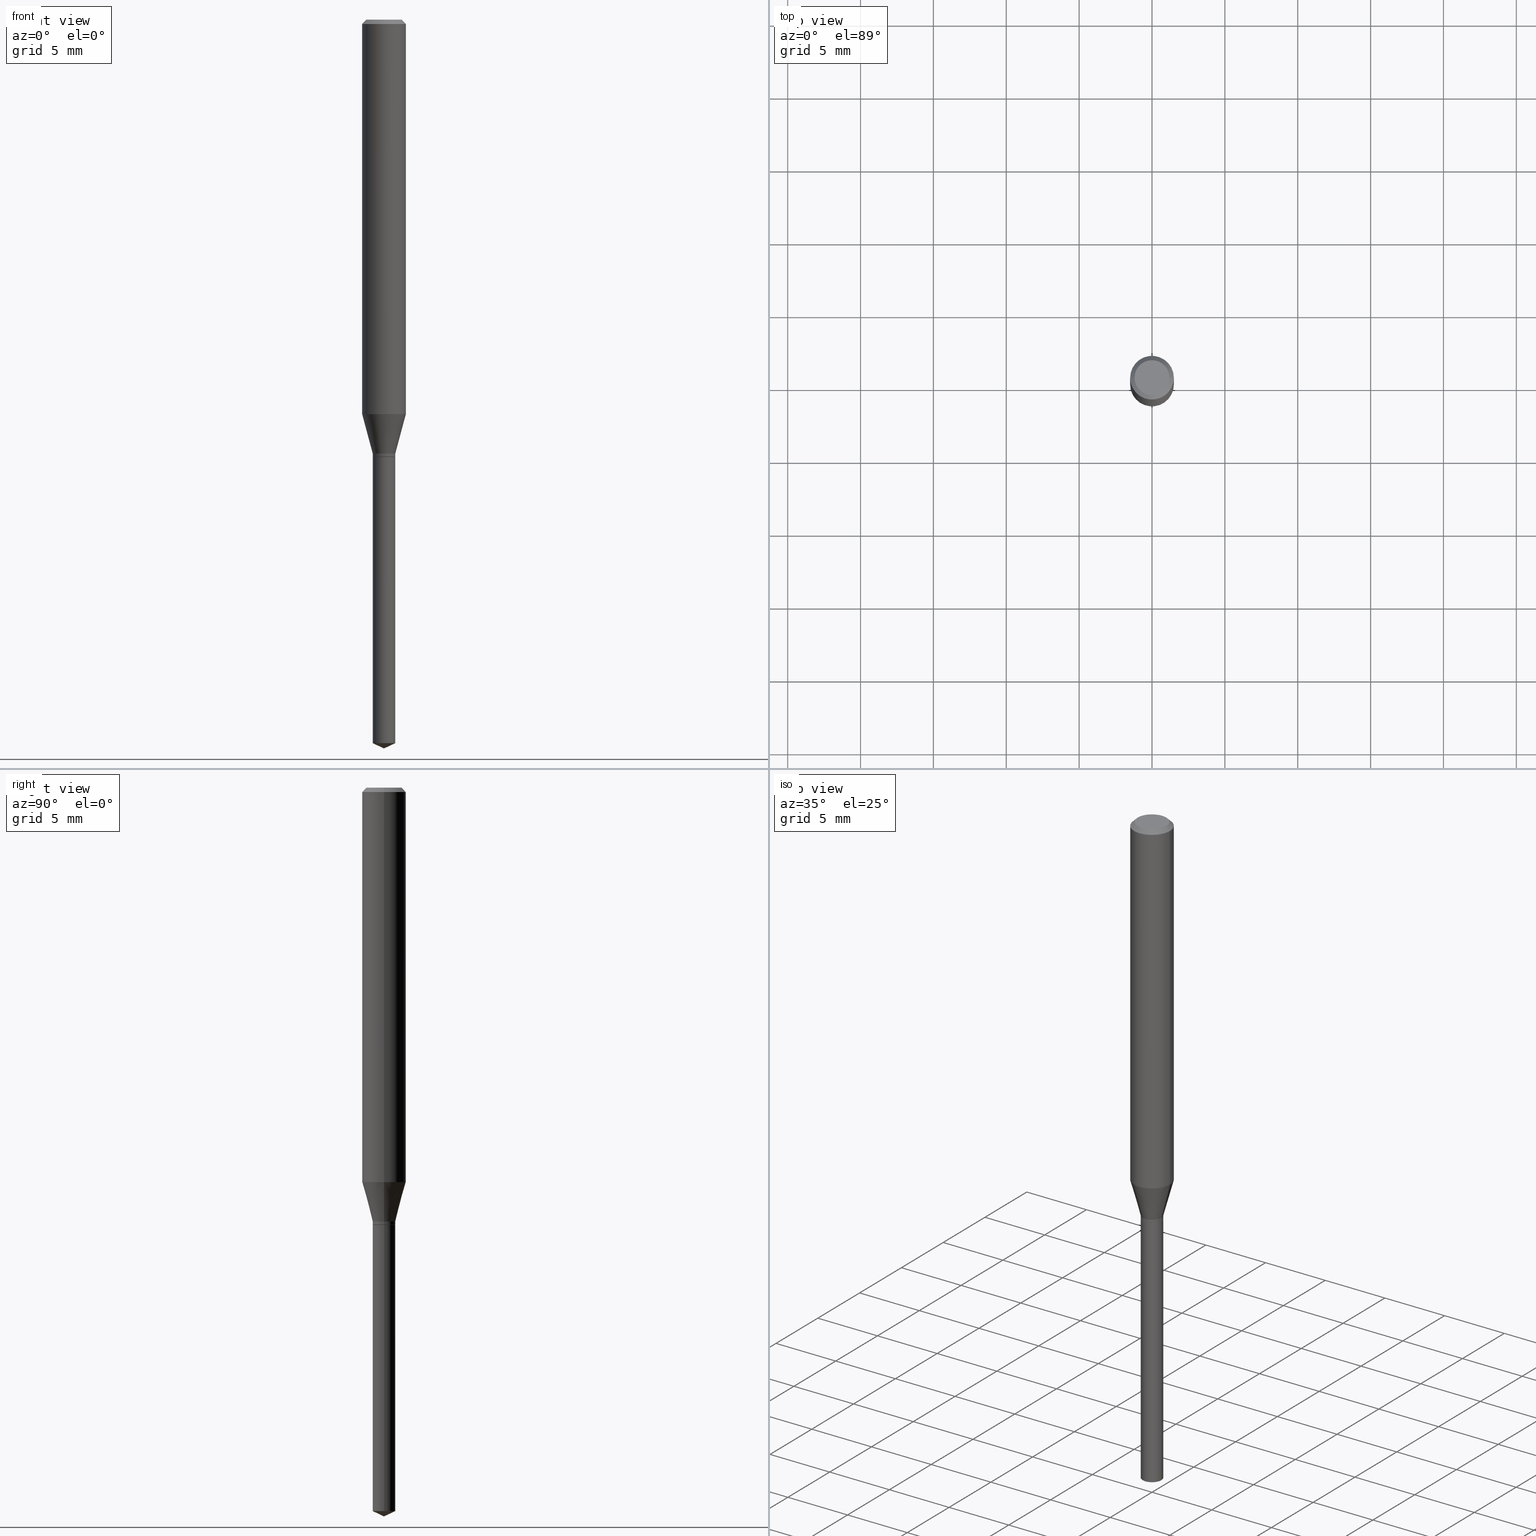
[diagram: canonical four-view strip — front | top / right | iso, engineering-drawing reading convention]
A machine part, canonical four-view strip (front | top / right | iso — engineering-drawing reading convention). The complete STEP part file that produces these views, byte-faithful:
ISO-10303-21;
HEADER;
FILE_DESCRIPTION (( 'STEP AP203' ),
    '1' );
FILE_NAME ('08169.STEP',
    '2024-04-24T13:42:27',
    ( '' ),
    ( '' ),
    'SwSTEP 2.0',
    'SolidWorks 2023',
    '' );
FILE_SCHEMA (( 'CONFIG_CONTROL_DESIGN' ));
ENDSEC;

DATA;
#1 = VERTEX_POINT ( 'NONE', #83 ) ;
#2 = DIRECTION ( 'NONE',  ( -2.445468806185136597E-29, 3.491481338843145583E-15, 1.000000000000000000 ) ) ;
#3 = APPLICATION_CONTEXT ( 'configuration controlled 3d designs of mechanical parts and assemblies' ) ;
#4 = CARTESIAN_POINT ( 'NONE',  ( 0.03049999999999999586, -4.338514711646492641E-15, -1.181600000000000206 ) ) ;
#5 = APPROVAL ( #205, 'UNSPECIFIED' ) ;
#6 = EDGE_CURVE ( 'NONE', #333, #372, #239, .T. ) ;
#7 = AXIS2_PLACEMENT_3D ( 'NONE', #126, #177, #366 ) ;
#8 = CARTESIAN_POINT ( 'NONE',  ( 0.000000000000000000, 0.000000000000000000, 0.000000000000000000 ) ) ;
#9 = AXIS2_PLACEMENT_3D ( 'NONE', #331, #295, #441 ) ;
#10 = APPLICATION_PROTOCOL_DEFINITION ( 'international standard', 'config_control_design', 1994, #119 ) ;
#11 = MECHANICAL_CONTEXT ( 'NONE', #3, 'mechanical' ) ;
#12 = DIRECTION ( 'NONE',  ( -2.445468806185136597E-29, 3.491481338843145583E-15, 1.000000000000000000 ) ) ;
#13 = ORIENTED_EDGE ( 'NONE', *, *, #160, .F. ) ;
#14 = EDGE_CURVE ( 'NONE', #1, #86, #140, .T. ) ;
#15 = DIRECTION ( 'NONE',  ( -2.445468806185136597E-29, 3.491481338843145583E-15, 1.000000000000000000 ) ) ;
#16 = ORIENTED_EDGE ( 'NONE', *, *, #211, .F. ) ;
#17 = LINE ( 'NONE', #468, #97 ) ;
#18 = MANIFOLD_SOLID_BREP ( 'Body-Move/Copy2[1]', #359 ) ;
#19 = ORIENTED_EDGE ( 'NONE', *, *, #79, .F. ) ;
#20 = DIRECTION ( 'NONE',  ( 1.000000000000000000, -6.982962677686266711E-15, 0.000000000000000000 ) ) ;
#21 = EDGE_CURVE ( 'NONE', #289, #210, #424, .T. ) ;
#22 = ORIENTED_EDGE ( 'NONE', *, *, #247, .F. ) ;
#23 = FACE_OUTER_BOUND ( 'NONE', #216, .T. ) ;
#24 = DIRECTION ( 'NONE',  ( 1.000000000000000000, -6.982962677686269866E-15, 0.000000000000000000 ) ) ;
#25 = ORIENTED_EDGE ( 'NONE', *, *, #384, .F. ) ;
#26 = DIRECTION ( 'NONE',  ( -2.445468806185136597E-29, 3.491481338843145583E-15, 1.000000000000000000 ) ) ;
#27 = DIRECTION ( 'NONE',  ( -2.445468806185136877E-29, 3.491481338843145188E-15, 1.000000000000000000 ) ) ;
#28 = ORIENTED_EDGE ( 'NONE', *, *, #14, .T. ) ;
#29 = LINE ( 'NONE', #233, #297 ) ;
#30 = LINE ( 'NONE', #303, #430 ) ;
#31 = ADVANCED_FACE ( 'NONE', ( #174 ), #215, .F. ) ;
#32 = ORIENTED_EDGE ( 'NONE', *, *, #470, .F. ) ;
#33 = CARTESIAN_POINT ( 'NONE',  ( 8.265746106709734507E-48, -1.180129479067563789E-33, -3.380025165646692144E-19 ) ) ;
#34 = DIRECTION ( 'NONE',  ( -2.445468806185136597E-29, 3.491481338843145583E-15, 1.000000000000000000 ) ) ;
#35 = PERSON_AND_ORGANIZATION ( #204, #466 ) ;
#36 = ORIENTED_EDGE ( 'NONE', *, *, #401, .T. ) ;
#37 = CARTESIAN_POINT ( 'NONE',  ( -0.05904999999999999832, -1.461739316084686790E-15, -0.01181000000000007044 ) ) ;
#38 = CARTESIAN_POINT ( 'NONE',  ( -0.05905000000000013710, -3.301819723023976134E-15, -1.065849949443908429 ) ) ;
#39 = CIRCLE ( 'NONE', #163, 0.05905000000000013710 ) ;
#40 = DATE_AND_TIME ( #312, #276 ) ;
#41 = DESIGN_CONTEXT ( 'detailed design', #119, 'design' ) ;
#42 = PERSON_AND_ORGANIZATION_ROLE ( 'design_owner' ) ;
#43 = ADVANCED_FACE ( 'NONE', ( #433 ), #431, .T. ) ;
#44 = CIRCLE ( 'NONE', #283, 0.03049999999999999586 ) ;
#45 = APPROVAL_PERSON_ORGANIZATION ( #288, #151, #434 ) ;
#46 = CARTESIAN_POINT ( 'NONE',  ( 4.132873053354867254E-48, -5.900647395337818946E-34, -1.690012582823346072E-19 ) ) ;
#47 = EDGE_CURVE ( 'NONE', #231, #252, #164, .T. ) ;
#48 = FACE_OUTER_BOUND ( 'NONE', #330, .T. ) ;
#49 = ORIENTED_EDGE ( 'NONE', *, *, #171, .F. ) ;
#50 = CARTESIAN_POINT ( 'NONE',  ( -8.056251198502642148E-30, -9.417258266884755769E-15, -1.181599999999999984 ) ) ;
#51 = CARTESIAN_POINT ( 'NONE',  ( 2.889565941388357678E-29, -4.125534349977061317E-15, -1.181600000000000206 ) ) ;
#52 = EDGE_CURVE ( 'NONE', #333, #231, #17, .T. ) ;
#53 = LINE ( 'NONE', #212, #403 ) ;
#54 = CIRCLE ( 'NONE', #117, 0.03050000000000000974 ) ;
#55 = CALENDAR_DATE ( 2024, 24, 4 ) ;
#56 = VERTEX_POINT ( 'NONE', #256 ) ;
#57 = DIRECTION ( 'NONE',  ( 1.000000000000000000, -6.982962677686266711E-15, 4.876176775795936353E-29 ) ) ;
#58 = CIRCLE ( 'NONE', #392, 0.03049999999999999586 ) ;
#59 = AXIS2_PLACEMENT_3D ( 'NONE', #172, #128, #322 ) ;
#60 = ORIENTED_EDGE ( 'NONE', *, *, #190, .F. ) ;
#61 = CARTESIAN_POINT ( 'NONE',  ( 2.888098660104663766E-31, -4.123439461173779647E-17, -0.01181000000000007044 ) ) ;
#62 = DIRECTION ( 'NONE',  ( -2.445468806185136597E-29, 3.491481338843145583E-15, 1.000000000000000000 ) ) ;
#63 = ORIENTED_EDGE ( 'NONE', *, *, #316, .T. ) ;
#64 = DIRECTION ( 'NONE',  ( 1.000000000000000000, -6.982962677686266711E-15, 0.000000000000000000 ) ) ;
#65 = DIRECTION ( 'NONE',  ( 2.445468806185136597E-29, -3.491481338843145583E-15, -1.000000000000000000 ) ) ;
#66 = ORIENTED_EDGE ( 'NONE', *, *, #237, .F. ) ;
#67 = CC_DESIGN_PERSON_AND_ORGANIZATION_ASSIGNMENT ( #423, #42, ( #142 ) ) ;
#68 = CARTESIAN_POINT ( 'NONE',  ( 4.815128079378533515E-29, -6.874726756182153211E-15, -1.968999999999999861 ) ) ;
#69 = CARTESIAN_POINT ( 'NONE',  ( 0.000000000000000000, 0.000000000000000000, 0.000000000000000000 ) ) ;
#70 = EDGE_LOOP ( 'NONE', ( #275, #108, #49, #16 ) ) ;
#71 = LINE ( 'NONE', #386, #203 ) ;
#72 = DIRECTION ( 'NONE',  ( -2.445468806185136597E-29, 3.491481338843145583E-15, 1.000000000000000000 ) ) ;
#73 = EDGE_LOOP ( 'NONE', ( #444, #173 ) ) ;
#74 = DIRECTION ( 'NONE',  ( 1.000000000000000000, -6.982962677686266711E-15, 0.000000000000000000 ) ) ;
#75 = APPROVAL_STATUS ( 'not_yet_approved' ) ;
#76 = AXIS2_PLACEMENT_3D ( 'NONE', #138, #413, #230 ) ;
#77 = AXIS2_PLACEMENT_3D ( 'NONE', #326, #250, #248 ) ;
#78 = PERSON_AND_ORGANIZATION ( #204, #466 ) ;
#79 = EDGE_CURVE ( 'NONE', #86, #197, #360, .T. ) ;
#80 = CIRCLE ( 'NONE', #123, 0.04724000000000000421 ) ;
#81 = ADVANCED_FACE ( 'NONE', ( #82 ), #438, .T. ) ;
#82 = FACE_OUTER_BOUND ( 'NONE', #167, .T. ) ;
#83 = CARTESIAN_POINT ( 'NONE',  ( 0.02999999999999999542, -4.335023230307649634E-15, -1.181600000000000206 ) ) ;
#84 = CONICAL_SURFACE ( 'NONE', #482, 0.05904999999999999832, 0.7853981633974452814 ) ;
#85 = DIRECTION ( 'NONE',  ( -2.445468806185136597E-29, 3.491481338843145583E-15, 1.000000000000000000 ) ) ;
#86 = VERTEX_POINT ( 'NONE', #363 ) ;
#87 = PLANE ( 'NONE',  #425 ) ;
#88 = ORIENTED_EDGE ( 'NONE', *, *, #157, .T. ) ;
#89 = APPROVAL_PERSON_ORGANIZATION ( #78, #5, #459 ) ;
#90 = FACE_OUTER_BOUND ( 'NONE', #144, .T. ) ;
#91 = APPROVAL_STATUS ( 'not_yet_approved' ) ;
#92 = ADVANCED_FACE ( 'NONE', ( #90 ), #87, .F. ) ;
#93 = VERTEX_POINT ( 'NONE', #332 ) ;
#94 = CARTESIAN_POINT ( 'NONE',  ( 2.889565941388357118E-29, -4.125534349977060528E-15, -1.181599999999999984 ) ) ;
#95 = CARTESIAN_POINT ( 'NONE',  ( 0.03049999999999999586, -7.038049931010047308E-15, -1.954777616426272902 ) ) ;
#96 = AXIS2_PLACEMENT_3D ( 'NONE', #269, #264, #143 ) ;
#97 = VECTOR ( 'NONE', #124, 39.37007874015748854 ) ;
#98 = ORIENTED_EDGE ( 'NONE', *, *, #406, .F. ) ;
#99 = DIRECTION ( 'NONE',  ( -2.445468806185136597E-29, 3.491481338843145583E-15, 1.000000000000000000 ) ) ;
#100 = CARTESIAN_POINT ( 'NONE',  ( 2.888098660104663766E-31, -4.123439461173779647E-17, -0.01181000000000007044 ) ) ;
#101 = SECURITY_CLASSIFICATION_LEVEL ( 'unclassified' ) ;
#102 = ORIENTED_EDGE ( 'NONE', *, *, #362, .T. ) ;
#103 = DIRECTION ( 'NONE',  ( -2.445468806185136597E-29, 3.491481338843145583E-15, 1.000000000000000000 ) ) ;
#104 = CARTESIAN_POINT ( 'NONE',  ( 0.05905000000000013710, -4.133739154607691731E-15, -1.065849949443908429 ) ) ;
#105 = VERTEX_POINT ( 'NONE', #95 ) ;
#106 = CARTESIAN_POINT ( 'NONE',  ( -0.03049999999999999586, -3.908818815570230173E-15, -1.181599999999999984 ) ) ;
#107 = FACE_OUTER_BOUND ( 'NONE', #125, .T. ) ;
#108 = ORIENTED_EDGE ( 'NONE', *, *, #52, .T. ) ;
#109 = DIRECTION ( 'NONE',  ( 1.000000000000000000, -6.982962677686266711E-15, 4.876185090822587894E-29 ) ) ;
#110 = ORIENTED_EDGE ( 'NONE', *, *, #406, .T. ) ;
#111 = ADVANCED_FACE ( 'NONE', ( #249 ), #395, .F. ) ;
#112 = CC_DESIGN_SECURITY_CLASSIFICATION ( #389, ( #477 ) ) ;
#113 =( CONVERSION_BASED_UNIT ( 'INCH', #200 ) LENGTH_UNIT ( ) NAMED_UNIT ( #278 ) );
#114 = AXIS2_PLACEMENT_3D ( 'NONE', #235, #26, #415 ) ;
#115 = DATE_TIME_ROLE ( 'creation_date' ) ;
#116 = COORDINATED_UNIVERSAL_TIME_OFFSET ( 5, 0, .BEHIND. ) ;
#117 = AXIS2_PLACEMENT_3D ( 'NONE', #427, #206, #20 ) ;
#118 = AXIS2_PLACEMENT_3D ( 'NONE', #51, #213, #364 ) ;
#119 = APPLICATION_CONTEXT ( 'configuration controlled 3d designs of mechanical parts and assemblies' ) ;
#120 = CARTESIAN_POINT ( 'NONE',  ( 4.815128079378533515E-29, -6.874726756182153211E-15, -1.968999999999999861 ) ) ;
#121 = ADVANCED_FACE ( 'NONE', ( #48 ), #325, .T. ) ;
#122 = EDGE_LOOP ( 'NONE', ( #262, #135, #60 ) ) ;
#123 = AXIS2_PLACEMENT_3D ( 'NONE', #373, #137, #109 ) ;
#124 = DIRECTION ( 'NONE',  ( -0.2588190451025211836, 5.211531920934547886E-15, 0.9659258262890679791 ) ) ;
#125 = EDGE_LOOP ( 'NONE', ( #150, #63, #219, #429 ) ) ;
#126 = CARTESIAN_POINT ( 'NONE',  ( 2.606502803439082942E-29, -3.721395208490316810E-15, -1.065849949443908429 ) ) ;
#127 = ORIENTED_EDGE ( 'NONE', *, *, #376, .F. ) ;
#128 = DIRECTION ( 'NONE',  ( -2.438088387897960049E-29, 3.491481338843145188E-15, 1.000000000000000000 ) ) ;
#129 = PERSON_AND_ORGANIZATION_ROLE ( 'creator' ) ;
#130 = ORIENTED_EDGE ( 'NONE', *, *, #52, .F. ) ;
#131 = LOCAL_TIME ( 9, 42, 27.00000000000000000, #337 ) ;
#132 = CYLINDRICAL_SURFACE ( 'NONE', #9, 0.03050000000000000627 ) ;
#133 = DIRECTION ( 'NONE',  ( 0.7071067811865322517, -2.468850131082098500E-15, 0.7071067811865625607 ) ) ;
#134 = DATE_AND_TIME ( #223, #131 ) ;
#135 = ORIENTED_EDGE ( 'NONE', *, *, #160, .T. ) ;
#136 = CONICAL_SURFACE ( 'NONE', #277, 0.03050000000000000627, 0.2617993877991499074 ) ;
#137 = DIRECTION ( 'NONE',  ( -2.445468806185136597E-29, 3.491481338843145583E-15, 1.000000000000000000 ) ) ;
#138 = CARTESIAN_POINT ( 'NONE',  ( 2.888098660104663766E-31, -4.123439461173779647E-17, -0.01181000000000007044 ) ) ;
#139 = PERSON_AND_ORGANIZATION_ROLE ( 'classification_officer' ) ;
#140 = CIRCLE ( 'NONE', #118, 0.02999999999999999542 ) ;
#141 = DIRECTION ( 'NONE',  ( 1.000000000000000000, -6.982962677686269866E-15, 0.000000000000000000 ) ) ;
#142 = PRODUCT ( '08169', '08169', '', ( #11 ) ) ;
#143 = DIRECTION ( 'NONE',  ( 1.000000000000000000, -6.982962677686254089E-15, 0.000000000000000000 ) ) ;
#144 = EDGE_LOOP ( 'NONE', ( #469, #110 ) ) ;
#145 = DIRECTION ( 'NONE',  ( 1.000000000000000000, -6.982962677686269866E-15, 0.000000000000000000 ) ) ;
#146 = CARTESIAN_POINT ( 'NONE',  ( 2.867067628371454727E-29, -4.093412721659704073E-15, -1.172400000000000109 ) ) ;
#147 = DIRECTION ( 'NONE',  ( 1.000000000000000000, -6.982962677686267499E-15, 0.000000000000000000 ) ) ;
#148 = FACE_OUTER_BOUND ( 'NONE', #184, .T. ) ;
#149 = AXIS2_PLACEMENT_3D ( 'NONE', #146, #62, #379 ) ;
#150 = ORIENTED_EDGE ( 'NONE', *, *, #362, .F. ) ;
#151 = APPROVAL ( #91, 'UNSPECIFIED' ) ;
#152 = PERSON_AND_ORGANIZATION ( #204, #466 ) ;
#153 = EDGE_CURVE ( 'NONE', #284, #197, #54, .T. ) ;
#154 = DIRECTION ( 'NONE',  ( 0.000000000000000000, 0.000000000000000000, 1.000000000000000000 ) ) ;
#155 = AXIS2_PLACEMENT_3D ( 'NONE', #8, #154, #353 ) ;
#156 = PERSON_AND_ORGANIZATION_ROLE ( 'creator' ) ;
#157 = EDGE_CURVE ( 'NONE', #1, #284, #53, .T. ) ;
#158 = VECTOR ( 'NONE', #455, 39.37007874015748143 ) ;
#159 = COORDINATED_UNIVERSAL_TIME_OFFSET ( 5, 0, .BEHIND. ) ;
#160 = EDGE_CURVE ( 'NONE', #435, #93, #471, .T. ) ;
#161 = AXIS2_PLACEMENT_3D ( 'NONE', #462, #15, #442 ) ;
#162 = AXIS2_PLACEMENT_3D ( 'NONE', #345, #72, #489 ) ;
#163 = AXIS2_PLACEMENT_3D ( 'NONE', #296, #12, #166 ) ;
#164 = CIRCLE ( 'NONE', #7, 0.05905000000000013710 ) ;
#165 = ADVANCED_FACE ( 'NONE', ( #405 ), #402, .T. ) ;
#166 = DIRECTION ( 'NONE',  ( 1.000000000000000000, -6.982962677686264344E-15, 0.000000000000000000 ) ) ;
#167 = EDGE_LOOP ( 'NONE', ( #13, #224, #450 ) ) ;
#168 = DIRECTION ( 'NONE',  ( -1.000000000000000000, 6.982962677686265922E-15, -4.876176775795935793E-29 ) ) ;
#169 = ORIENTED_EDGE ( 'NONE', *, *, #340, .F. ) ;
#170 = CIRCLE ( 'NONE', #268, 0.05904999999999999832 ) ;
#171 = EDGE_CURVE ( 'NONE', #252, #231, #39, .T. ) ;
#172 = CARTESIAN_POINT ( 'NONE',  ( 2.889565941388357678E-29, -4.125534349977061317E-15, -1.181600000000000206 ) ) ;
#173 = ORIENTED_EDGE ( 'NONE', *, *, #281, .F. ) ;
#174 = FACE_OUTER_BOUND ( 'NONE', #73, .T. ) ;
#175 = EDGE_LOOP ( 'NONE', ( #169, #381, #447, #98 ) ) ;
#176 = FACE_OUTER_BOUND ( 'NONE', #398, .T. ) ;
#177 = DIRECTION ( 'NONE',  ( -2.445468806185136597E-29, 3.491481338843145583E-15, 1.000000000000000000 ) ) ;
#178 = ORIENTED_EDGE ( 'NONE', *, *, #255, .T. ) ;
#179 = ADVANCED_FACE ( 'NONE', ( #320 ), #282, .T. ) ;
#180 = LOCAL_TIME ( 9, 42, 27.00000000000000000, #116 ) ;
#181 = CARTESIAN_POINT ( 'NONE',  ( 2.867067628371454727E-29, -4.093412721659704073E-15, -1.172400000000000109 ) ) ;
#182 = FACE_OUTER_BOUND ( 'NONE', #228, .T. ) ;
#183 = PERSON_AND_ORGANIZATION_ROLE ( 'design_supplier' ) ;
#184 = EDGE_LOOP ( 'NONE', ( #130, #301, #411, #420 ) ) ;
#185 = CONICAL_SURFACE ( 'NONE', #426, 84.42940631927602624, 1.134464013796323556 ) ;
#186 = CARTESIAN_POINT ( 'NONE',  ( -0.05904999999999999832, 3.711095515056362547E-16, -0.01181000000000007044 ) ) ;
#187 = CARTESIAN_POINT ( 'NONE',  ( 0.03050000000000000627, -4.306393083329135397E-15, -1.172400000000000109 ) ) ;
#188 = ORIENTED_EDGE ( 'NONE', *, *, #6, .F. ) ;
#189 = CARTESIAN_POINT ( 'NONE',  ( -0.03050000000000000627, -3.891885131076841194E-15, -1.172400000000000109 ) ) ;
#190 = EDGE_CURVE ( 'NONE', #105, #93, #318, .T. ) ;
#191 = DIRECTION ( 'NONE',  ( 1.000000000000000000, -6.982962677686254089E-15, 0.000000000000000000 ) ) ;
#192 = ORIENTED_EDGE ( 'NONE', *, *, #324, .F. ) ;
#193 = DIRECTION ( 'NONE',  ( -2.445468806185136877E-29, 3.491481338843145188E-15, 1.000000000000000000 ) ) ;
#194 = DIRECTION ( 'NONE',  ( 1.000000000000000000, -6.982962677686269077E-15, 0.000000000000000000 ) ) ;
#195 = CC_DESIGN_DATE_AND_TIME_ASSIGNMENT ( #292, #437, ( #389 ) ) ;
#196 = VECTOR ( 'NONE', #251, 39.37007874015748143 ) ;
#197 = VERTEX_POINT ( 'NONE', #453 ) ;
#198 =( NAMED_UNIT ( * ) PLANE_ANGLE_UNIT ( ) SI_UNIT ( $, .RADIAN. ) );
#199 = VECTOR ( 'NONE', #222, 39.37007874015748854 ) ;
#200 = LENGTH_MEASURE_WITH_UNIT ( LENGTH_MEASURE( 0.02539999999999999897 ), #241 );
#201 = EDGE_CURVE ( 'NONE', #93, #105, #58, .T. ) ;
#202 = DATE_AND_TIME ( #391, #294 ) ;
#203 = VECTOR ( 'NONE', #193, 39.37007874015748143 ) ;
#204 = PERSON ( 'UNSPECIFIED', 'UNSPECIFIED', 'UNSPECIFIED', ('UNSPECIFIED'), ('UNSPECIFIED'), ('UNSPECIFIED') ) ;
#205 = APPROVAL_STATUS ( 'not_yet_approved' ) ;
#206 = DIRECTION ( 'NONE',  ( -2.445468806185136597E-29, 3.491481338843145583E-15, 1.000000000000000000 ) ) ;
#207 = CIRCLE ( 'NONE', #114, 0.03050000000000000627 ) ;
#208 = APPROVAL_PERSON_ORGANIZATION ( #152, #410, #393 ) ;
#209 = DIRECTION ( 'NONE',  ( 1.000000000000000000, -6.982962677686266711E-15, 4.876176775795935232E-29 ) ) ;
#210 = VERTEX_POINT ( 'NONE', #261 ) ;
#211 = EDGE_CURVE ( 'NONE', #372, #252, #416, .T. ) ;
#212 = CARTESIAN_POINT ( 'NONE',  ( 0.02999999999999999542, -4.335023230307649634E-15, -1.181600000000000206 ) ) ;
#213 = DIRECTION ( 'NONE',  ( -2.445468806185136597E-29, 3.491481338843145583E-15, 1.000000000000000000 ) ) ;
#214 = AXIS2_PLACEMENT_3D ( 'NONE', #46, #217, #168 ) ;
#215 = PLANE ( 'NONE',  #59 ) ;
#216 = EDGE_LOOP ( 'NONE', ( #19, #388, #88, #473 ) ) ;
#217 = DIRECTION ( 'NONE',  ( 2.438088387897960049E-29, -3.491481338843145188E-15, -1.000000000000000000 ) ) ;
#218 = EDGE_CURVE ( 'NONE', #435, #105, #342, .T. ) ;
#219 = ORIENTED_EDGE ( 'NONE', *, *, #317, .T. ) ;
#220 = FACE_OUTER_BOUND ( 'NONE', #483, .T. ) ;
#221 = ADVANCED_BREP_SHAPE_REPRESENTATION ( '08169', ( #18, #355, #155 ), #354 ) ;
#222 = DIRECTION ( 'NONE',  ( 0.2588190451025211836, 1.565188264969622559E-15, 0.9659258262890679791 ) ) ;
#223 = CALENDAR_DATE ( 2024, 24, 4 ) ;
#224 = ORIENTED_EDGE ( 'NONE', *, *, #218, .T. ) ;
#225 = CARTESIAN_POINT ( 'NONE',  ( 2.888343206985265437E-29, -4.123788609307639813E-15, -1.181100000000000039 ) ) ;
#226 = VECTOR ( 'NONE', #272, 39.37007874015748143 ) ;
#227 = DIRECTION ( 'NONE',  ( -1.000000000000000000, 6.982962677686266711E-15, 0.000000000000000000 ) ) ;
#228 = EDGE_LOOP ( 'NONE', ( #28, #361, #321, #487 ) ) ;
#229 = LINE ( 'NONE', #382, #226 ) ;
#230 = DIRECTION ( 'NONE',  ( -1.000000000000000000, 6.982962677686266711E-15, 0.000000000000000000 ) ) ;
#231 = VERTEX_POINT ( 'NONE', #38 ) ;
#232 = CC_DESIGN_DATE_AND_TIME_ASSIGNMENT ( #40, #115, ( #271 ) ) ;
#233 = CARTESIAN_POINT ( 'NONE',  ( 0.05904999999999999832, -4.463468013801466955E-16, -0.01181000000000007044 ) ) ;
#234 = CARTESIAN_POINT ( 'NONE',  ( 2.889565941388357678E-29, -4.125534349977061317E-15, -1.181600000000000206 ) ) ;
#235 = CARTESIAN_POINT ( 'NONE',  ( 2.867067628371454727E-29, -4.093412721659704073E-15, -1.172400000000000109 ) ) ;
#236 = ADVANCED_FACE ( 'NONE', ( #148 ), #259, .T. ) ;
#237 = EDGE_CURVE ( 'NONE', #105, #289, #308, .T. ) ;
#238 = VECTOR ( 'NONE', #486, 39.37007874015748143 ) ;
#239 = CIRCLE ( 'NONE', #77, 0.03050000000000000627 ) ;
#240 = CONICAL_SURFACE ( 'NONE', #76, 0.05904999999999999832, 0.7853981633974452814 ) ;
#241 =( LENGTH_UNIT ( ) NAMED_UNIT ( * ) SI_UNIT ( $, .METRE. ) );
#242 = CC_DESIGN_PERSON_AND_ORGANIZATION_ASSIGNMENT ( #367, #129, ( #477 ) ) ;
#243 = AXIS2_PLACEMENT_3D ( 'NONE', #225, #274, #378 ) ;
#244 = DIRECTION ( 'NONE',  ( 1.000000000000000000, -6.982962677686269866E-15, 0.000000000000000000 ) ) ;
#245 = CONICAL_SURFACE ( 'NONE', #162, 0.02999999999999999542, 0.7853981633974269627 ) ;
#246 = ADVANCED_FACE ( 'NONE', ( #107 ), #240, .T. ) ;
#247 = EDGE_CURVE ( 'NONE', #231, #298, #30, .T. ) ;
#248 = DIRECTION ( 'NONE',  ( 1.000000000000000000, -6.982962677686267499E-15, 0.000000000000000000 ) ) ;
#249 = FACE_OUTER_BOUND ( 'NONE', #467, .T. ) ;
#250 = DIRECTION ( 'NONE',  ( -2.445468806185136597E-29, 3.491481338843145583E-15, 1.000000000000000000 ) ) ;
#251 = DIRECTION ( 'NONE',  ( -0.9063077870366539335, 7.915267918739014631E-15, 0.4226182617406910036 ) ) ;
#252 = VERTEX_POINT ( 'NONE', #104 ) ;
#253 = CC_DESIGN_APPROVAL ( #5, ( #477 ) ) ;
#254 = AXIS2_PLACEMENT_3D ( 'NONE', #291, #436, #57 ) ;
#255 = EDGE_CURVE ( 'NONE', #252, #339, #273, .T. ) ;
#256 = CARTESIAN_POINT ( 'NONE',  ( 0.04724000000000000421, -3.852183633974369345E-16, -3.380025165621689721E-19 ) ) ;
#257 = APPROVAL_DATE_TIME ( #134, #151 ) ;
#258 = ORIENTED_EDGE ( 'NONE', *, *, #317, .F. ) ;
#259 = CONICAL_SURFACE ( 'NONE', #149, 0.03050000000000000627, 0.2617993877991499074 ) ;
#260 = CARTESIAN_POINT ( 'NONE',  ( 0.05904999999999999832, -4.535783407291118600E-16, -0.01181000000000007044 ) ) ;
#261 = CARTESIAN_POINT ( 'NONE',  ( -0.03049999999999999586, -5.258586425252008690E-15, -1.181600000000000206 ) ) ;
#262 = ORIENTED_EDGE ( 'NONE', *, *, #218, .F. ) ;
#263 = DIRECTION ( 'NONE',  ( -2.445468806185136597E-29, 3.491481338843145583E-15, 1.000000000000000000 ) ) ;
#264 = DIRECTION ( 'NONE',  ( -2.445468806185136597E-29, 3.491481338843145583E-15, 1.000000000000000000 ) ) ;
#265 = COORDINATED_UNIVERSAL_TIME_OFFSET ( 5, 0, .BEHIND. ) ;
#266 = ORIENTED_EDGE ( 'NONE', *, *, #316, .F. ) ;
#267 = FACE_OUTER_BOUND ( 'NONE', #70, .T. ) ;
#268 = AXIS2_PLACEMENT_3D ( 'NONE', #61, #480, #74 ) ;
#269 = CARTESIAN_POINT ( 'NONE',  ( 4.780347683999384122E-29, -6.825069569340615984E-15, -1.954777616426272902 ) ) ;
#270 = ADVANCED_FACE ( 'NONE', ( #182 ), #245, .T. ) ;
#271 = PRODUCT_DEFINITION ( 'UNKNOWN', '', #477, #41 ) ;
#272 = DIRECTION ( 'NONE',  ( -2.445468806185136877E-29, 3.491481338843145188E-15, 1.000000000000000000 ) ) ;
#273 = LINE ( 'NONE', #446, #357 ) ;
#274 = DIRECTION ( 'NONE',  ( -2.445468806185136597E-29, 3.491481338843145583E-15, 1.000000000000000000 ) ) ;
#275 = ORIENTED_EDGE ( 'NONE', *, *, #324, .T. ) ;
#276 = LOCAL_TIME ( 9, 42, 27.00000000000000000, #313 ) ;
#277 = AXIS2_PLACEMENT_3D ( 'NONE', #181, #103, #147 ) ;
#278 = DIMENSIONAL_EXPONENTS ( 1.000000000000000000, 0.000000000000000000, 0.000000000000000000, 0.000000000000000000, 0.000000000000000000, 0.000000000000000000, 0.000000000000000000 ) ;
#279 = CALENDAR_DATE ( 2024, 24, 4 ) ;
#280 = CLOSED_SHELL ( 'NONE', ( #270, #246, #165, #311, #121, #490, #236, #179, #290, #111, #31, #474 ) ) ;
#281 = EDGE_CURVE ( 'NONE', #86, #1, #458, .T. ) ;
#282 = CYLINDRICAL_SURFACE ( 'NONE', #369, 0.05905000000000006771 ) ;
#283 = AXIS2_PLACEMENT_3D ( 'NONE', #344, #341, #141 ) ;
#284 = VERTEX_POINT ( 'NONE', #348 ) ;
#285 = CARTESIAN_POINT ( 'NONE',  ( 2.889565941388357678E-29, -4.125534349977061317E-15, -1.181600000000000206 ) ) ;
#286 = ORIENTED_EDGE ( 'NONE', *, *, #47, .T. ) ;
#287 = DIRECTION ( 'NONE',  ( -2.445468806185136597E-29, 3.491481338843145583E-15, 1.000000000000000000 ) ) ;
#288 = PERSON_AND_ORGANIZATION ( #204, #466 ) ;
#289 = VERTEX_POINT ( 'NONE', #4 ) ;
#290 = ADVANCED_FACE ( 'NONE', ( #481 ), #84, .T. ) ;
#291 = CARTESIAN_POINT ( 'NONE',  ( 0.000000000000000000, 0.000000000000000000, 0.000000000000000000 ) ) ;
#292 = DATE_AND_TIME ( #55, #356 ) ;
#293 = ORIENTED_EDGE ( 'NONE', *, *, #153, .T. ) ;
#294 = LOCAL_TIME ( 9, 42, 27.00000000000000000, #159 ) ;
#295 = DIRECTION ( 'NONE',  ( -2.445468806185136597E-29, 3.491481338843145583E-15, 1.000000000000000000 ) ) ;
#296 = CARTESIAN_POINT ( 'NONE',  ( 2.606502803439082942E-29, -3.721395208490316810E-15, -1.065849949443908429 ) ) ;
#297 = VECTOR ( 'NONE', #448, 39.37007874015748143 ) ;
#298 = VERTEX_POINT ( 'NONE', #37 ) ;
#299 = CYLINDRICAL_SURFACE ( 'NONE', #380, 0.03049999999999999586 ) ;
#300 = DIRECTION ( 'NONE',  ( 1.000000000000000000, -6.982962677686266711E-15, 4.876176775795936353E-29 ) ) ;
#301 = ORIENTED_EDGE ( 'NONE', *, *, #6, .T. ) ;
#302 = CARTESIAN_POINT ( 'NONE',  ( 0.03050000000000000627, -4.306393083329135397E-15, -1.172400000000000109 ) ) ;
#303 = CARTESIAN_POINT ( 'NONE',  ( -0.05905000000000006771, 4.195754854663396409E-16, -2.904631170795525045E-30 ) ) ;
#304 = ADVANCED_FACE ( 'NONE', ( #220 ), #299, .T. ) ;
#305 = EDGE_LOOP ( 'NONE', ( #368, #417, #258, #463 ) ) ;
#306 = CARTESIAN_POINT ( 'NONE',  ( -9.146317137672921654E-28, 1.305851684738629534E-13, 37.40107874015748024 ) ) ;
#307 = CIRCLE ( 'NONE', #243, 0.03050000000000000974 ) ;
#308 = LINE ( 'NONE', #374, #461 ) ;
#309 = DIRECTION ( 'NONE',  ( -2.445468806185136597E-29, 3.491481338843145583E-15, 1.000000000000000000 ) ) ;
#310 = ORIENTED_EDGE ( 'NONE', *, *, #340, .T. ) ;
#311 = ADVANCED_FACE ( 'NONE', ( #267 ), #136, .T. ) ;
#312 = CALENDAR_DATE ( 2024, 24, 4 ) ;
#313 = COORDINATED_UNIVERSAL_TIME_OFFSET ( 5, 0, .BEHIND. ) ;
#314 = CIRCLE ( 'NONE', #422, 0.05904999999999999832 ) ;
#315 = APPROVAL_DATE_TIME ( #202, #410 ) ;
#316 = EDGE_CURVE ( 'NONE', #56, #339, #29, .T. ) ;
#317 = EDGE_CURVE ( 'NONE', #339, #298, #314, .T. ) ;
#318 = CIRCLE ( 'NONE', #96, 0.03049999999999999586 ) ;
#319 = VECTOR ( 'NONE', #370, 39.37007874015748854 ) ;
#320 = FACE_OUTER_BOUND ( 'NONE', #375, .T. ) ;
#321 = ORIENTED_EDGE ( 'NONE', *, *, #153, .F. ) ;
#322 = DIRECTION ( 'NONE',  ( 1.000000000000000000, -6.982962677686265922E-15, 4.876176775795935793E-29 ) ) ;
#323 = ORIENTED_EDGE ( 'NONE', *, *, #21, .F. ) ;
#324 = EDGE_CURVE ( 'NONE', #372, #333, #207, .T. ) ;
#325 = CYLINDRICAL_SURFACE ( 'NONE', #347, 0.03050000000000000627 ) ;
#326 = CARTESIAN_POINT ( 'NONE',  ( 2.867067628371454727E-29, -4.093412721659704073E-15, -1.172400000000000109 ) ) ;
#327 = CARTESIAN_POINT ( 'NONE',  ( -0.02999999999999999542, -3.912371529249031072E-15, -1.181600000000000206 ) ) ;
#328 = SHAPE_DEFINITION_REPRESENTATION ( #479, #221 ) ;
#329 = UNCERTAINTY_MEASURE_WITH_UNIT (LENGTH_MEASURE( 1.000000000000000082E-05 ), #113, 'distance_accuracy_value', 'NONE');
#330 = EDGE_LOOP ( 'NONE', ( #293, #385, #192, #439 ) ) ;
#331 = CARTESIAN_POINT ( 'NONE',  ( 0.000000000000000000, 0.000000000000000000, 0.000000000000000000 ) ) ;
#332 = CARTESIAN_POINT ( 'NONE',  ( -0.03049999999999999586, -6.608354034933785630E-15, -1.954777616426272902 ) ) ;
#333 = VERTEX_POINT ( 'NONE', #189 ) ;
#334 = CC_DESIGN_APPROVAL ( #151, ( #389 ) ) ;
#335 = LINE ( 'NONE', #186, #338 ) ;
#336 = CARTESIAN_POINT ( 'NONE',  ( 4.815128079378533515E-29, -6.874726756182153211E-15, -1.968999999999999861 ) ) ;
#337 = COORDINATED_UNIVERSAL_TIME_OFFSET ( 5, 0, .BEHIND. ) ;
#338 = VECTOR ( 'NONE', #445, 39.37007874015748143 ) ;
#339 = VERTEX_POINT ( 'NONE', #260 ) ;
#340 = EDGE_CURVE ( 'NONE', #93, #210, #485, .T. ) ;
#341 = DIRECTION ( 'NONE',  ( -2.445468806185136597E-29, 3.491481338843145583E-15, 1.000000000000000000 ) ) ;
#342 = LINE ( 'NONE', #336, #238 ) ;
#343 = ORIENTED_EDGE ( 'NONE', *, *, #376, .T. ) ;
#344 = CARTESIAN_POINT ( 'NONE',  ( 2.889565941388357678E-29, -4.125534349977061317E-15, -1.181600000000000206 ) ) ;
#345 = CARTESIAN_POINT ( 'NONE',  ( 2.889565941388357678E-29, -4.125534349977061317E-15, -1.181600000000000206 ) ) ;
#346 = CARTESIAN_POINT ( 'NONE',  ( 2.889565941388357678E-29, -4.125534349977061317E-15, -1.181600000000000206 ) ) ;
#347 = AXIS2_PLACEMENT_3D ( 'NONE', #476, #287, #209 ) ;
#348 = CARTESIAN_POINT ( 'NONE',  ( 0.03050000000000000974, -4.336768970977071137E-15, -1.181100000000000039 ) ) ;
#349 = ADVANCED_FACE ( 'NONE', ( #488 ), #185, .T. ) ;
#350 = EDGE_CURVE ( 'NONE', #432, #298, #335, .T. ) ;
#351 = APPLICATION_PROTOCOL_DEFINITION ( 'international standard', 'config_control_design', 1994, #3 ) ;
#352 = AXIS2_PLACEMENT_3D ( 'NONE', #465, #399, #244 ) ;
#353 = DIRECTION ( 'NONE',  ( 1.000000000000000000, 0.000000000000000000, 0.000000000000000000 ) ) ;
#354 =( GEOMETRIC_REPRESENTATION_CONTEXT ( 3 ) GLOBAL_UNCERTAINTY_ASSIGNED_CONTEXT ( ( #329 ) ) GLOBAL_UNIT_ASSIGNED_CONTEXT ( ( #113, #198, #390 ) ) REPRESENTATION_CONTEXT ( 'NONE', 'WORKASPACE' ) );
#355 = MANIFOLD_SOLID_BREP ( 'Body-Move/Copy2[2]', #280 ) ;
#356 = LOCAL_TIME ( 9, 42, 27.00000000000000000, #265 ) ;
#357 = VECTOR ( 'NONE', #383, 39.37007874015748143 ) ;
#358 = DIRECTION ( 'NONE',  ( -1.000000000000000000, 6.982962677686265922E-15, -4.876176775795935793E-29 ) ) ;
#359 = CLOSED_SHELL ( 'NONE', ( #304, #349, #81, #43, #92 ) ) ;
#360 = LINE ( 'NONE', #327, #319 ) ;
#361 = ORIENTED_EDGE ( 'NONE', *, *, #79, .T. ) ;
#362 = EDGE_CURVE ( 'NONE', #56, #432, #428, .T. ) ;
#363 = CARTESIAN_POINT ( 'NONE',  ( -0.02999999999999999542, -3.909722302074919871E-15, -1.181600000000000206 ) ) ;
#364 = DIRECTION ( 'NONE',  ( 1.000000000000000000, -6.982962677686269077E-15, 0.000000000000000000 ) ) ;
#365 = CC_DESIGN_PERSON_AND_ORGANIZATION_ASSIGNMENT ( #472, #139, ( #389 ) ) ;
#366 = DIRECTION ( 'NONE',  ( 1.000000000000000000, -6.982962677686264344E-15, 0.000000000000000000 ) ) ;
#367 = PERSON_AND_ORGANIZATION ( #204, #466 ) ;
#368 = ORIENTED_EDGE ( 'NONE', *, *, #171, .T. ) ;
#369 = AXIS2_PLACEMENT_3D ( 'NONE', #69, #419, #300 ) ;
#370 = DIRECTION ( 'NONE',  ( -0.7071067811865322517, 7.493145998870298940E-15, 0.7071067811865625607 ) ) ;
#371 = APPROVAL_DATE_TIME ( #456, #5 ) ;
#372 = VERTEX_POINT ( 'NONE', #302 ) ;
#373 = CARTESIAN_POINT ( 'NONE',  ( 8.265746106709734507E-48, -1.180129479067563789E-33, -3.380025165646692144E-19 ) ) ;
#374 = CARTESIAN_POINT ( 'NONE',  ( 0.03049999999999999586, -4.338514711646491852E-15, -1.181599999999999984 ) ) ;
#375 = EDGE_LOOP ( 'NONE', ( #22, #286, #178, #127 ) ) ;
#376 = EDGE_CURVE ( 'NONE', #298, #339, #170, .T. ) ;
#377 = AXIS2_PLACEMENT_3D ( 'NONE', #346, #2, #421 ) ;
#378 = DIRECTION ( 'NONE',  ( 1.000000000000000000, -6.982962677686266711E-15, 0.000000000000000000 ) ) ;
#379 = DIRECTION ( 'NONE',  ( 1.000000000000000000, -6.982962677686267499E-15, 0.000000000000000000 ) ) ;
#380 = AXIS2_PLACEMENT_3D ( 'NONE', #94, #309, #145 ) ;
#381 = ORIENTED_EDGE ( 'NONE', *, *, #201, .T. ) ;
#382 = CARTESIAN_POINT ( 'NONE',  ( 0.03050000000000000627, -2.129803616694311761E-16, 1.487233916617760606E-30 ) ) ;
#383 = DIRECTION ( 'NONE',  ( -2.445468806185136877E-29, 3.491481338843145188E-15, 1.000000000000000000 ) ) ;
#384 = EDGE_CURVE ( 'NONE', #432, #56, #80, .T. ) ;
#385 = ORIENTED_EDGE ( 'NONE', *, *, #470, .T. ) ;
#386 = CARTESIAN_POINT ( 'NONE',  ( -0.03050000000000000627, 2.167155344068306013E-16, -1.500275202527746597E-30 ) ) ;
#387 = DIRECTION ( 'NONE',  ( -2.445468806185136597E-29, 3.491481338843145583E-15, 1.000000000000000000 ) ) ;
#388 = ORIENTED_EDGE ( 'NONE', *, *, #281, .T. ) ;
#389 = SECURITY_CLASSIFICATION ( '', '', #101 ) ;
#390 =( NAMED_UNIT ( * ) SI_UNIT ( $, .STERADIAN. ) SOLID_ANGLE_UNIT ( ) );
#391 = CALENDAR_DATE ( 2024, 24, 4 ) ;
#392 = AXIS2_PLACEMENT_3D ( 'NONE', #409, #34, #191 ) ;
#393 = APPROVAL_ROLE ( '' ) ;
#394 = AXIS2_PLACEMENT_3D ( 'NONE', #33, #99, #452 ) ;
#395 = PLANE ( 'NONE',  #214 ) ;
#396 = CC_DESIGN_APPROVAL ( #410, ( #271 ) ) ;
#397 = DIRECTION ( 'NONE',  ( 2.438088387897960049E-29, -3.491481338843145188E-15, -1.000000000000000000 ) ) ;
#398 = EDGE_LOOP ( 'NONE', ( #32, #36, #478, #188 ) ) ;
#399 = DIRECTION ( 'NONE',  ( -2.445468806185136597E-29, 3.491481338843145583E-15, 1.000000000000000000 ) ) ;
#400 = ORIENTED_EDGE ( 'NONE', *, *, #190, .T. ) ;
#401 = EDGE_CURVE ( 'NONE', #197, #284, #307, .T. ) ;
#402 = CYLINDRICAL_SURFACE ( 'NONE', #254, 0.05905000000000006771 ) ;
#403 = VECTOR ( 'NONE', #133, 39.37007874015748854 ) ;
#404 = ORIENTED_EDGE ( 'NONE', *, *, #350, .T. ) ;
#405 = FACE_OUTER_BOUND ( 'NONE', #305, .T. ) ;
#406 = EDGE_CURVE ( 'NONE', #210, #289, #44, .T. ) ;
#407 = ORIENTED_EDGE ( 'NONE', *, *, #384, .T. ) ;
#408 = DIRECTION ( 'NONE',  ( -2.445468806185136597E-29, 3.491481338843145583E-15, 1.000000000000000000 ) ) ;
#409 = CARTESIAN_POINT ( 'NONE',  ( 4.780347683999384122E-29, -6.825069569340615984E-15, -1.954777616426272902 ) ) ;
#410 = APPROVAL ( #75, 'UNSPECIFIED' ) ;
#411 = ORIENTED_EDGE ( 'NONE', *, *, #211, .T. ) ;
#412 = DIRECTION ( 'NONE',  ( 1.000000000000000000, -6.982962677686266711E-15, 0.000000000000000000 ) ) ;
#413 = DIRECTION ( 'NONE',  ( 2.445468806185136597E-29, -3.491481338843145583E-15, -1.000000000000000000 ) ) ;
#414 = EDGE_LOOP ( 'NONE', ( #266, #25, #404, #343 ) ) ;
#415 = DIRECTION ( 'NONE',  ( 1.000000000000000000, -6.982962677686267499E-15, 0.000000000000000000 ) ) ;
#416 = LINE ( 'NONE', #187, #199 ) ;
#417 = ORIENTED_EDGE ( 'NONE', *, *, #247, .T. ) ;
#418 = CARTESIAN_POINT ( 'NONE',  ( 2.888098660104663766E-31, -4.123439461173779647E-17, -0.01181000000000007044 ) ) ;
#419 = DIRECTION ( 'NONE',  ( -2.445468806185136597E-29, 3.491481338843145583E-15, 1.000000000000000000 ) ) ;
#420 = ORIENTED_EDGE ( 'NONE', *, *, #47, .F. ) ;
#421 = DIRECTION ( 'NONE',  ( 1.000000000000000000, -6.982962677686269077E-15, 0.000000000000000000 ) ) ;
#422 = AXIS2_PLACEMENT_3D ( 'NONE', #418, #263, #412 ) ;
#423 = PERSON_AND_ORGANIZATION ( #204, #466 ) ;
#424 = CIRCLE ( 'NONE', #484, 0.03049999999999999586 ) ;
#425 = AXIS2_PLACEMENT_3D ( 'NONE', #50, #397, #358 ) ;
#426 = AXIS2_PLACEMENT_3D ( 'NONE', #306, #408, #64 ) ;
#427 = CARTESIAN_POINT ( 'NONE',  ( 2.888343206985265437E-29, -4.123788609307639813E-15, -1.181100000000000039 ) ) ;
#428 = CIRCLE ( 'NONE', #394, 0.04724000000000000421 ) ;
#429 = ORIENTED_EDGE ( 'NONE', *, *, #350, .F. ) ;
#430 = VECTOR ( 'NONE', #449, 39.37007874015748143 ) ;
#431 = CYLINDRICAL_SURFACE ( 'NONE', #352, 0.03049999999999999586 ) ;
#432 = VERTEX_POINT ( 'NONE', #475 ) ;
#433 = FACE_OUTER_BOUND ( 'NONE', #175, .T. ) ;
#434 = APPROVAL_ROLE ( '' ) ;
#435 = VERTEX_POINT ( 'NONE', #68 ) ;
#436 = DIRECTION ( 'NONE',  ( -2.445468806185136597E-29, 3.491481338843145583E-15, 1.000000000000000000 ) ) ;
#437 = DATE_TIME_ROLE ( 'classification_date' ) ;
#438 = CONICAL_SURFACE ( 'NONE', #161, 84.42940631927602624, 1.134464013796323556 ) ;
#439 = ORIENTED_EDGE ( 'NONE', *, *, #440, .F. ) ;
#440 = EDGE_CURVE ( 'NONE', #284, #372, #229, .T. ) ;
#441 = DIRECTION ( 'NONE',  ( 1.000000000000000000, -6.982962677686266711E-15, 4.876176775795935232E-29 ) ) ;
#442 = DIRECTION ( 'NONE',  ( 1.000000000000000000, -6.982962677686266711E-15, 0.000000000000000000 ) ) ;
#443 = AXIS2_PLACEMENT_3D ( 'NONE', #234, #387, #194 ) ;
#444 = ORIENTED_EDGE ( 'NONE', *, *, #14, .F. ) ;
#445 = DIRECTION ( 'NONE',  ( -0.7071067811865453523, 2.468850131082234184E-15, -0.7071067811865496822 ) ) ;
#446 = CARTESIAN_POINT ( 'NONE',  ( 0.05905000000000006771, -4.123439461173745257E-16, 2.879382386107503723E-30 ) ) ;
#447 = ORIENTED_EDGE ( 'NONE', *, *, #237, .T. ) ;
#448 = DIRECTION ( 'NONE',  ( 0.7071067811865453523, -7.319954787623248157E-15, -0.7071067811865496822 ) ) ;
#449 = DIRECTION ( 'NONE',  ( -2.445468806185136877E-29, 3.491481338843145188E-15, 1.000000000000000000 ) ) ;
#450 = ORIENTED_EDGE ( 'NONE', *, *, #201, .F. ) ;
#451 = CONICAL_SURFACE ( 'NONE', #377, 0.02999999999999999542, 0.7853981633974269627 ) ;
#452 = DIRECTION ( 'NONE',  ( 1.000000000000000000, -6.982962677686266711E-15, 4.876185090822587894E-29 ) ) ;
#453 = CARTESIAN_POINT ( 'NONE',  ( -0.03050000000000001321, -3.891885131076841194E-15, -1.181100000000000039 ) ) ;
#454 = CC_DESIGN_PERSON_AND_ORGANIZATION_ASSIGNMENT ( #35, #183, ( #477 ) ) ;
#455 = DIRECTION ( 'NONE',  ( -2.445468806185136877E-29, 3.491481338843145188E-15, 1.000000000000000000 ) ) ;
#456 = DATE_AND_TIME ( #279, #180 ) ;
#457 = PERSON_AND_ORGANIZATION ( #204, #466 ) ;
#458 = CIRCLE ( 'NONE', #443, 0.02999999999999999542 ) ;
#459 = APPROVAL_ROLE ( '' ) ;
#460 = PRODUCT_RELATED_PRODUCT_CATEGORY ( 'detail', '', ( #142 ) ) ;
#461 = VECTOR ( 'NONE', #27, 39.37007874015748143 ) ;
#462 = CARTESIAN_POINT ( 'NONE',  ( -9.146317137672921654E-28, 1.305851684738629534E-13, 37.40107874015748024 ) ) ;
#463 = ORIENTED_EDGE ( 'NONE', *, *, #255, .F. ) ;
#464 = CC_DESIGN_PERSON_AND_ORGANIZATION_ASSIGNMENT ( #457, #156, ( #271 ) ) ;
#465 = CARTESIAN_POINT ( 'NONE',  ( 2.889565941388357118E-29, -4.125534349977060528E-15, -1.181599999999999984 ) ) ;
#466 = ORGANIZATION ( 'UNSPECIFIED', 'UNSPECIFIED', '' ) ;
#467 = EDGE_LOOP ( 'NONE', ( #407, #102 ) ) ;
#468 = CARTESIAN_POINT ( 'NONE',  ( -0.03050000000000000627, -3.876697187252873719E-15, -1.172400000000000109 ) ) ;
#469 = ORIENTED_EDGE ( 'NONE', *, *, #21, .T. ) ;
#470 = EDGE_CURVE ( 'NONE', #197, #333, #71, .T. ) ;
#471 = LINE ( 'NONE', #120, #196 ) ;
#472 = PERSON_AND_ORGANIZATION ( #204, #466 ) ;
#473 = ORIENTED_EDGE ( 'NONE', *, *, #401, .F. ) ;
#474 = ADVANCED_FACE ( 'NONE', ( #23 ), #451, .T. ) ;
#475 = CARTESIAN_POINT ( 'NONE',  ( -0.04724000000000000421, 3.504923541997677355E-16, -3.380025165670481712E-19 ) ) ;
#476 = CARTESIAN_POINT ( 'NONE',  ( 0.000000000000000000, 0.000000000000000000, 0.000000000000000000 ) ) ;
#477 = PRODUCT_DEFINITION_FORMATION_WITH_SPECIFIED_SOURCE ( 'ANY', '', #142, .NOT_KNOWN. ) ;
#478 = ORIENTED_EDGE ( 'NONE', *, *, #440, .T. ) ;
#479 = PRODUCT_DEFINITION_SHAPE ( 'NONE', 'NONE',  #271 ) ;
#480 = DIRECTION ( 'NONE',  ( -2.445468806185136597E-29, 3.491481338843145583E-15, 1.000000000000000000 ) ) ;
#481 = FACE_OUTER_BOUND ( 'NONE', #414, .T. ) ;
#482 = AXIS2_PLACEMENT_3D ( 'NONE', #100, #65, #227 ) ;
#483 = EDGE_LOOP ( 'NONE', ( #400, #310, #323, #66 ) ) ;
#484 = AXIS2_PLACEMENT_3D ( 'NONE', #285, #85, #24 ) ;
#485 = LINE ( 'NONE', #106, #158 ) ;
#486 = DIRECTION ( 'NONE',  ( 0.9063077870366539335, -4.853149677051437166E-15, 0.4226182617406910036 ) ) ;
#487 = ORIENTED_EDGE ( 'NONE', *, *, #157, .F. ) ;
#488 = FACE_OUTER_BOUND ( 'NONE', #122, .T. ) ;
#489 = DIRECTION ( 'NONE',  ( 1.000000000000000000, -6.982962677686269077E-15, 0.000000000000000000 ) ) ;
#490 = ADVANCED_FACE ( 'NONE', ( #176 ), #132, .T. ) ;
ENDSEC;
END-ISO-10303-21;
